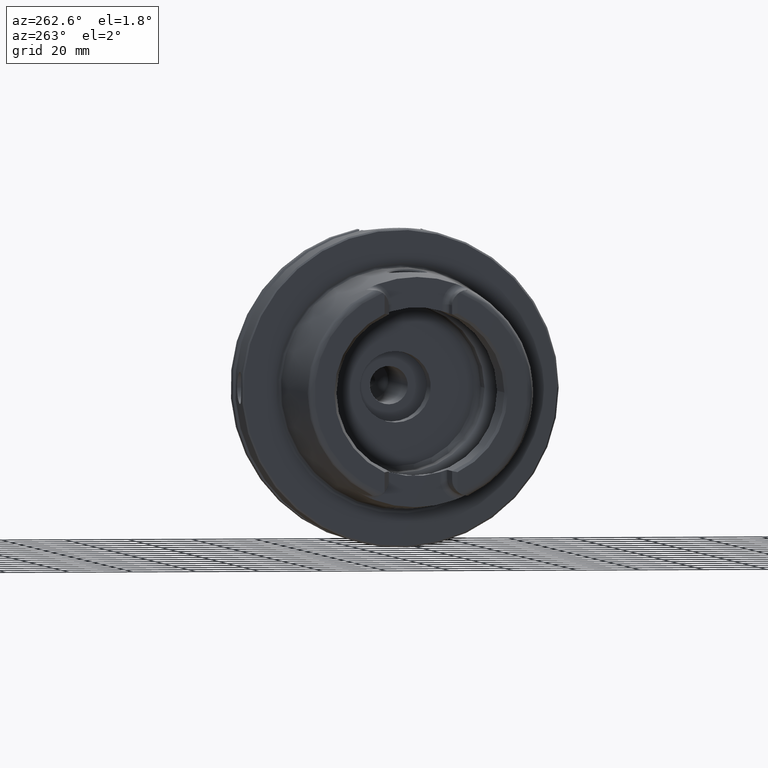
[diagram: clean part render]
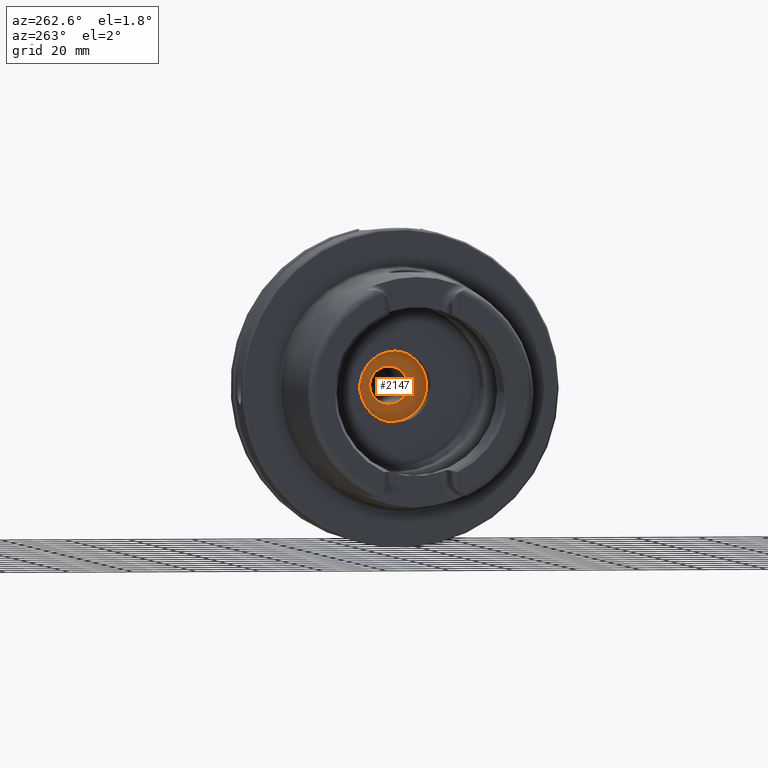
[diagram: same view with one face highlighted and labeled with its STEP entity id]
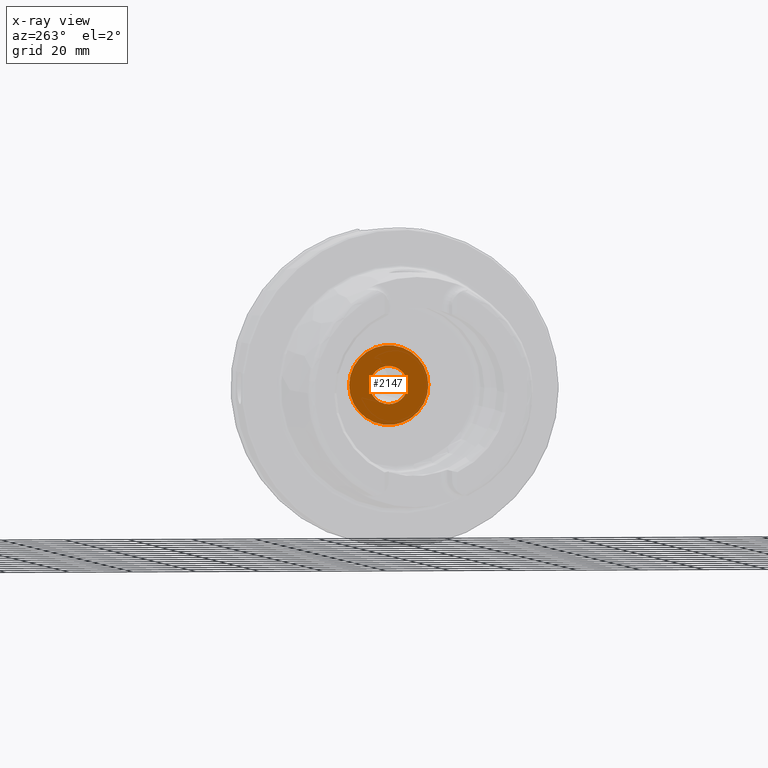
[diagram: x-ray of the same camera — body ghosted, the highlighted face saturated]
A machine part, auxiliary view. The second image highlights one B-rep face of the part: STEP entity #2147.
The next image is the same camera in x-ray: the body ghosted, the highlighted face saturated — about 0% of this face is hidden behind the body in this view.
In plain terms, the highlighted planar face has unit normal (1, 0, 0).
Its self-contained STEP definition (entity closure, byte-faithful):
#95=FACE_BOUND('',#452,.T.);
#132=PLANE('',#2420);
#317=FACE_OUTER_BOUND('',#451,.T.);
#451=EDGE_LOOP('',(#1939));
#452=EDGE_LOOP('',(#1940));
#723=CIRCLE('',#2243,6.);
#810=CIRCLE('',#2421,12.5);
#871=VERTEX_POINT('',#3229);
#1032=VERTEX_POINT('',#4599);
#1097=EDGE_CURVE('',#871,#871,#723,.T.);
#1343=EDGE_CURVE('',#1032,#1032,#810,.T.);
#1939=ORIENTED_EDGE('',*,*,#1343,.T.);
#1940=ORIENTED_EDGE('',*,*,#1097,.T.);
#2147=ADVANCED_FACE('',(#317,#95),#132,.F.);
#2243=AXIS2_PLACEMENT_3D('',#3230,#2588,#2589);
#2420=AXIS2_PLACEMENT_3D('',#4598,#3025,#3026);
#2421=AXIS2_PLACEMENT_3D('',#4600,#3027,#3028);
#2588=DIRECTION('center_axis',(1.,0.,0.));
#2589=DIRECTION('ref_axis',(0.,-1.06221930374718E-16,1.));
#3025=DIRECTION('center_axis',(1.,0.,0.));
#3026=DIRECTION('ref_axis',(0.,0.,-1.));
#3027=DIRECTION('center_axis',(-1.,0.,0.));
#3028=DIRECTION('ref_axis',(0.,0.,1.));
#3229=CARTESIAN_POINT('',(28.5,1.37211966173672E-15,-6.));
#3230=CARTESIAN_POINT('Origin',(28.5,0.,0.));
#4598=CARTESIAN_POINT('Origin',(28.5,12.5,0.));
#4599=CARTESIAN_POINT('',(28.5,-12.5,1.53080849893419E-15));
#4600=CARTESIAN_POINT('Origin',(28.5,0.,0.));